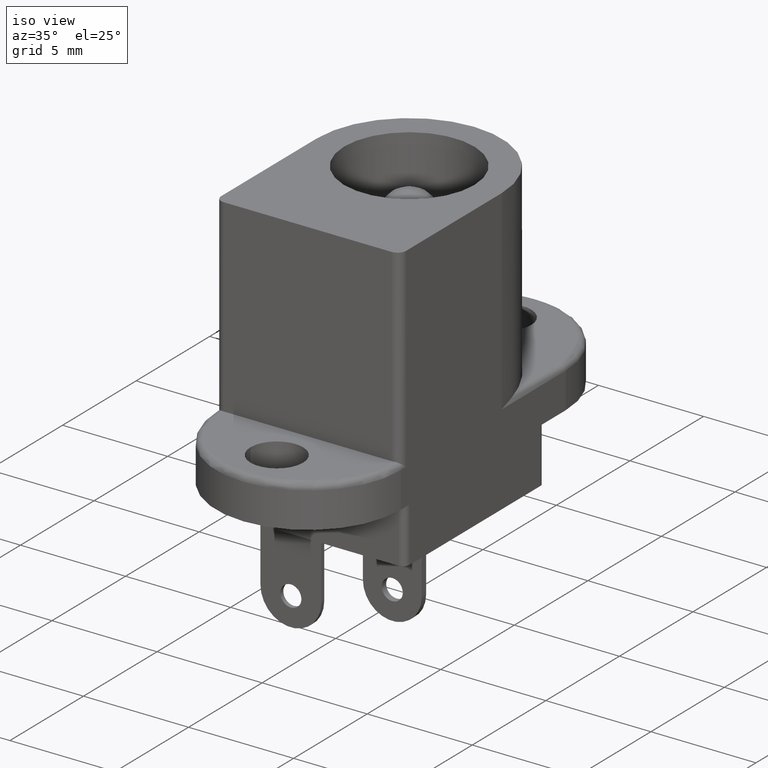
[diagram: clean part render]
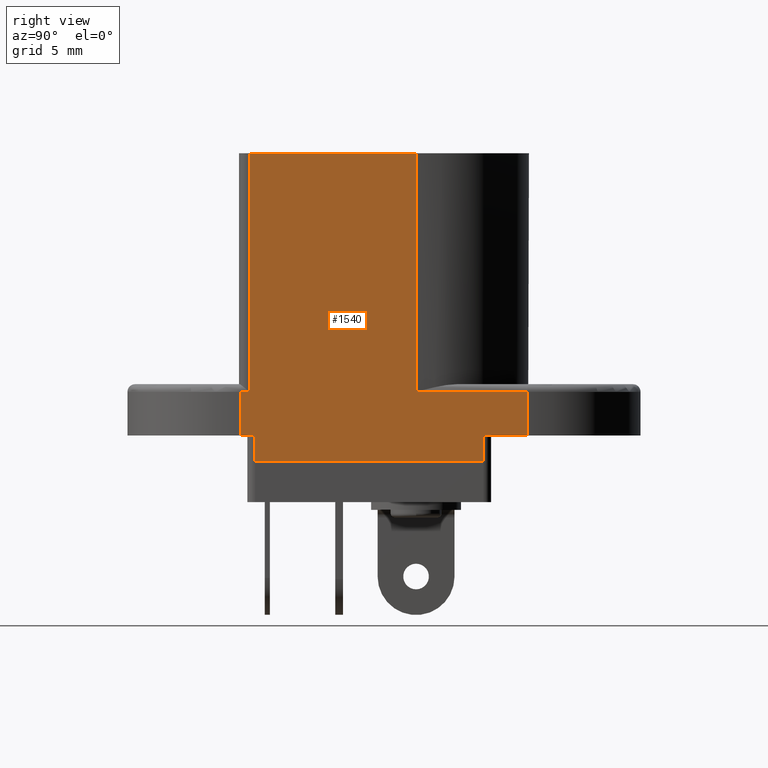
[diagram: tour spotlight — one face highlighted and labeled with its STEP entity id]
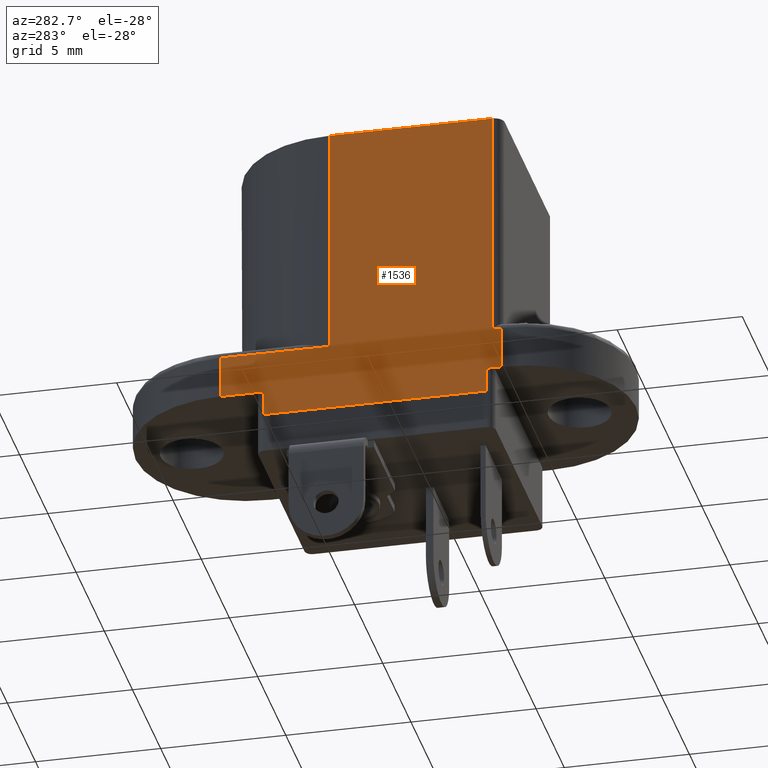
[diagram: tour spotlight — one face highlighted and labeled with its STEP entity id]
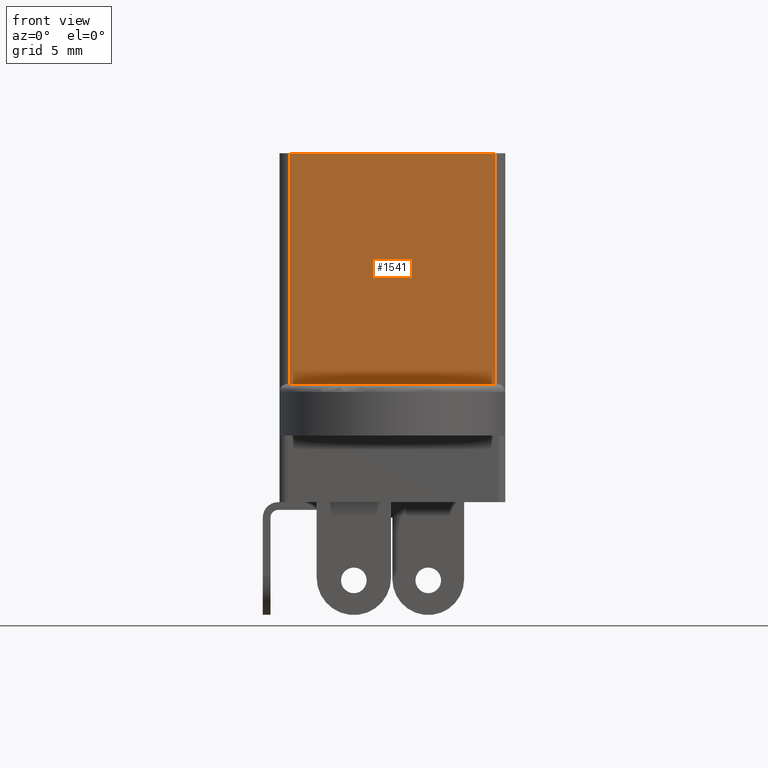
[diagram: tour spotlight — one face highlighted and labeled with its STEP entity id]
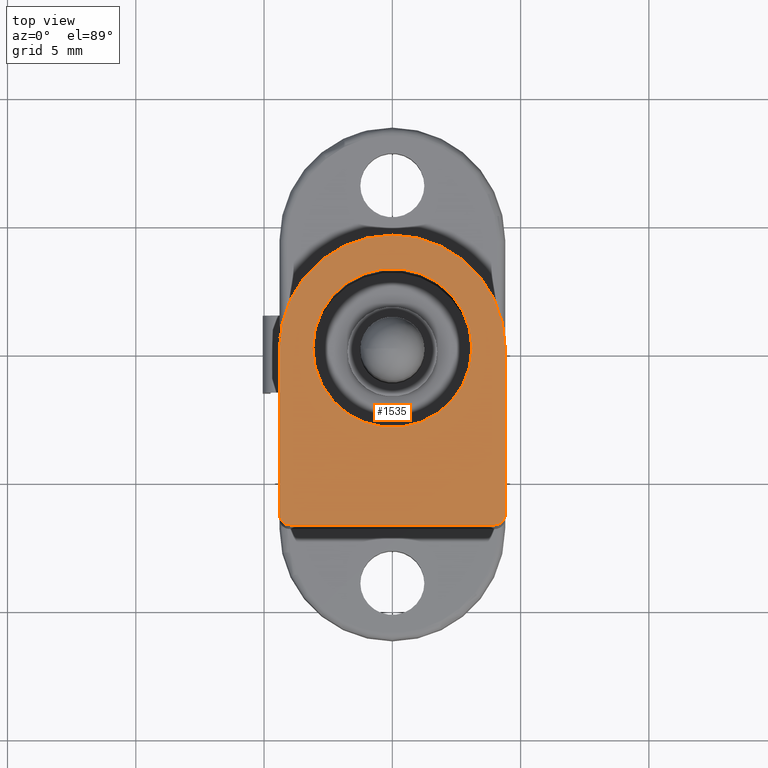
[diagram: tour spotlight — one face highlighted and labeled with its STEP entity id]
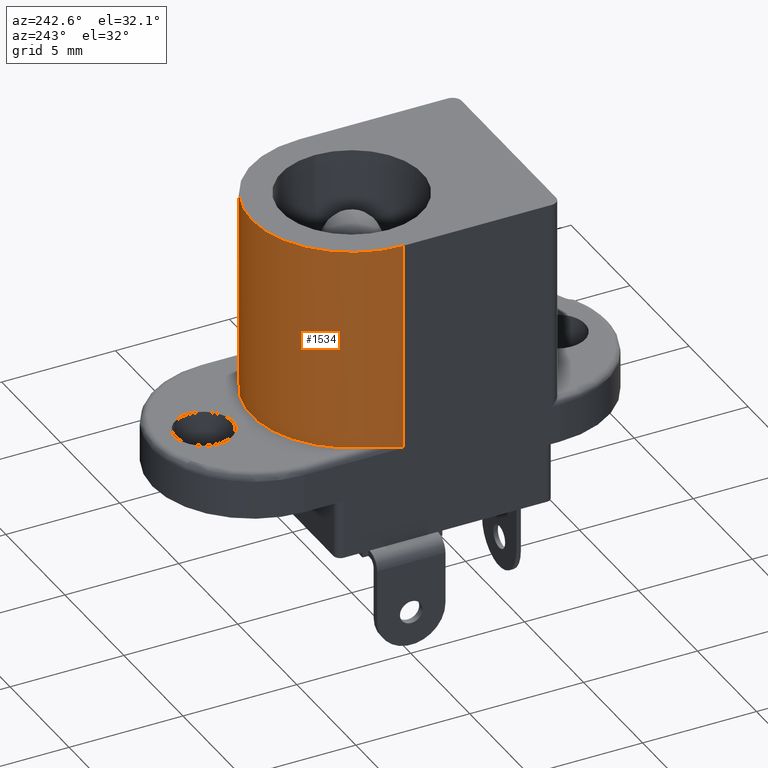
[diagram: tour spotlight — one face highlighted and labeled with its STEP entity id]
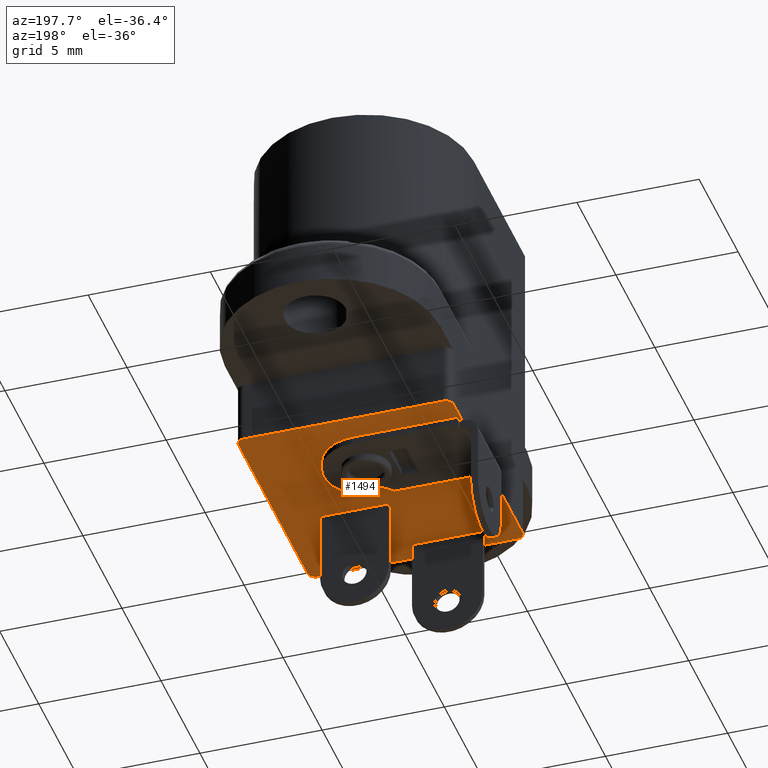
[diagram: tour spotlight — one face highlighted and labeled with its STEP entity id]
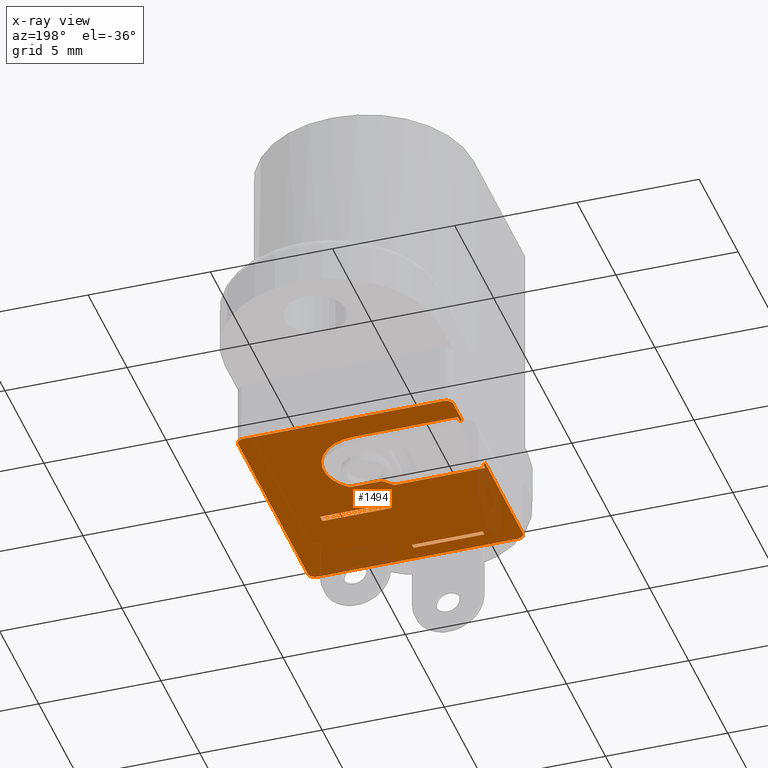
[diagram: x-ray of the same camera — body ghosted, this tour face saturated]
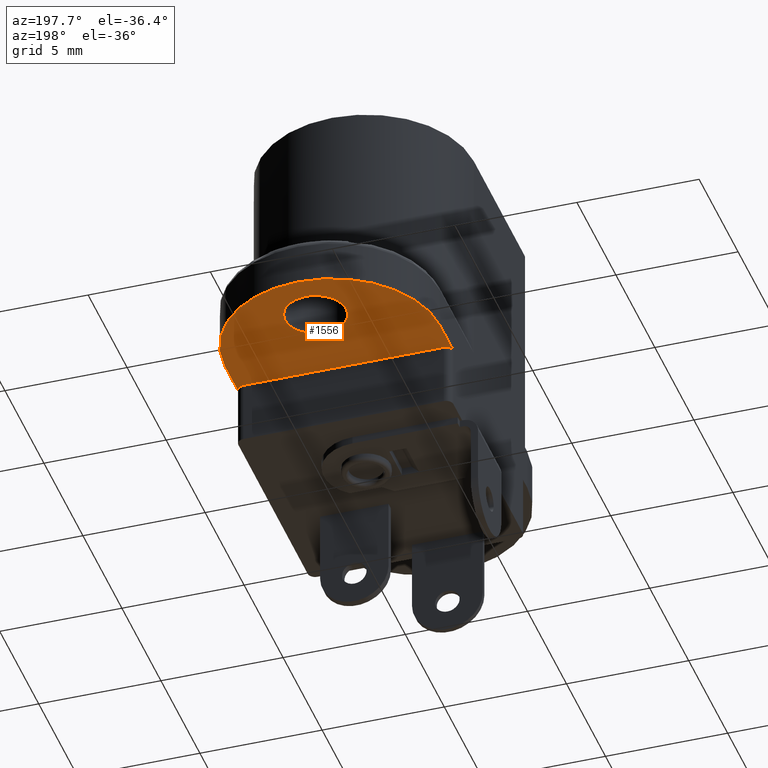
[diagram: tour spotlight — one face highlighted and labeled with its STEP entity id]
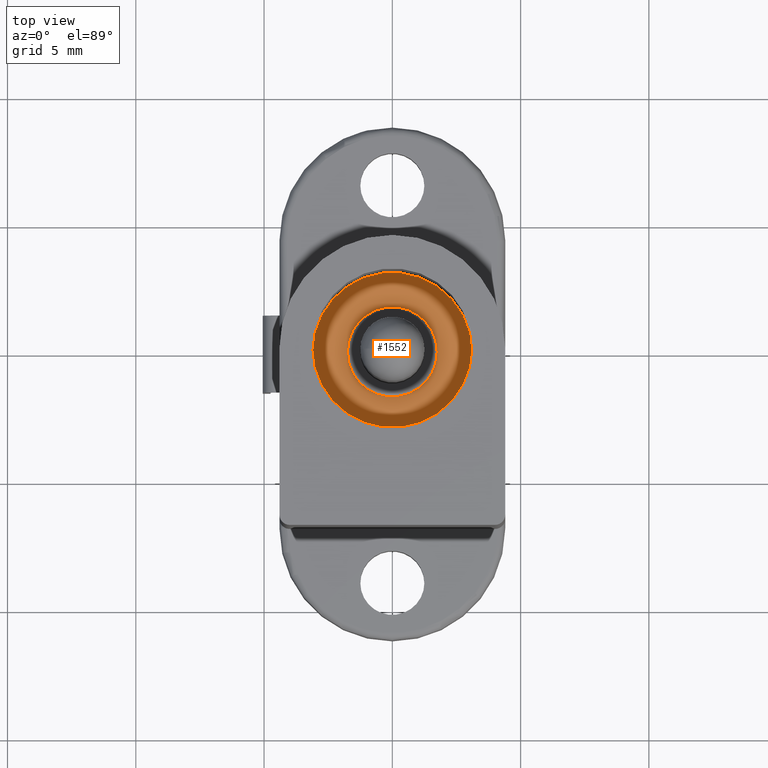
[diagram: tour spotlight — one face highlighted and labeled with its STEP entity id]
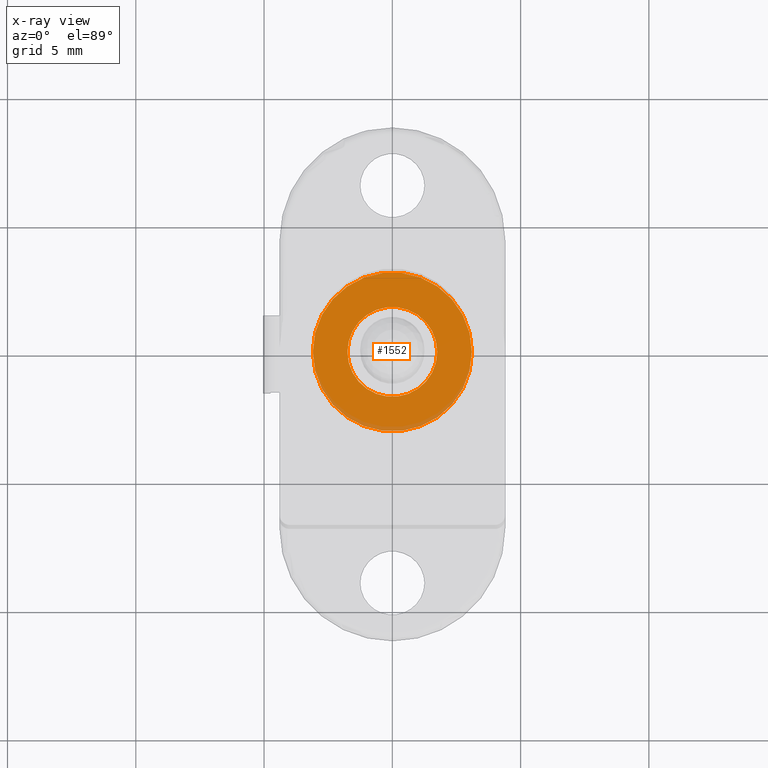
[diagram: x-ray of the same camera — body ghosted, this tour face saturated]
A machine part: a face-by-face anatomy tour. The part has 82 B-rep faces; the first image is the clean iso view, then the 8 largest visible faces are spotlighted one at a time (largest first), each with its STEP entity span.

Face 1 — right view, entity #1540. In plain terms, the highlighted planar face has unit normal (-1, 0, 0).
Definition (entity closure, byte-faithful):
#76=PLANE('',#1687);
#183=LINE('',#2455,#317);
#186=LINE('',#2480,#320);
#199=LINE('',#2698,#333);
#200=LINE('',#2702,#334);
#201=LINE('',#2704,#335);
#202=LINE('',#2706,#336);
#203=LINE('',#2708,#337);
#204=LINE('',#2710,#338);
#205=LINE('',#2712,#339);
#206=LINE('',#2714,#340);
#207=LINE('',#2715,#341);
#208=LINE('',#2716,#342);
#317=VECTOR('',#2024,1000.);
#320=VECTOR('',#2035,1000.);
#333=VECTOR('',#2060,1000.);
#334=VECTOR('',#2063,1000.);
#335=VECTOR('',#2064,1000.);
#336=VECTOR('',#2065,1000.);
#337=VECTOR('',#2066,1000.);
#338=VECTOR('',#2067,1000.);
#339=VECTOR('',#2068,1000.);
#340=VECTOR('',#2069,1000.);
#341=VECTOR('',#2070,1000.);
#342=VECTOR('',#2071,1000.);
#446=FACE_OUTER_BOUND('',#540,.T.);
#540=EDGE_LOOP('',(#1289,#1290,#1291,#1292,#1293,#1294,#1295,#1296,#1297,
#1298,#1299,#1300));
#730=VERTEX_POINT('',#2452);
#731=VERTEX_POINT('',#2454);
#737=VERTEX_POINT('',#2478);
#749=VERTEX_POINT('',#2696);
#750=VERTEX_POINT('',#2700);
#751=VERTEX_POINT('',#2701);
#752=VERTEX_POINT('',#2703);
#753=VERTEX_POINT('',#2705);
#754=VERTEX_POINT('',#2707);
#755=VERTEX_POINT('',#2709);
#756=VERTEX_POINT('',#2711);
#757=VERTEX_POINT('',#2713);
#915=EDGE_CURVE('',#730,#731,#183,.T.);
#923=EDGE_CURVE('',#737,#730,#186,.T.);
#939=EDGE_CURVE('',#731,#749,#199,.T.);
#940=EDGE_CURVE('',#750,#751,#200,.T.);
#941=EDGE_CURVE('',#752,#750,#201,.T.);
#942=EDGE_CURVE('',#752,#753,#202,.T.);
#943=EDGE_CURVE('',#754,#753,#203,.T.);
#944=EDGE_CURVE('',#755,#754,#204,.T.);
#945=EDGE_CURVE('',#756,#755,#205,.T.);
#946=EDGE_CURVE('',#756,#757,#206,.T.);
#947=EDGE_CURVE('',#749,#757,#207,.T.);
#948=EDGE_CURVE('',#751,#737,#208,.T.);
#1289=ORIENTED_EDGE('',*,*,#940,.F.);
#1290=ORIENTED_EDGE('',*,*,#941,.F.);
#1291=ORIENTED_EDGE('',*,*,#942,.T.);
#1292=ORIENTED_EDGE('',*,*,#943,.F.);
#1293=ORIENTED_EDGE('',*,*,#944,.F.);
#1294=ORIENTED_EDGE('',*,*,#945,.F.);
#1295=ORIENTED_EDGE('',*,*,#946,.T.);
#1296=ORIENTED_EDGE('',*,*,#947,.F.);
#1297=ORIENTED_EDGE('',*,*,#939,.F.);
#1298=ORIENTED_EDGE('',*,*,#915,.F.);
#1299=ORIENTED_EDGE('',*,*,#923,.F.);
#1300=ORIENTED_EDGE('',*,*,#948,.F.);
#1540=ADVANCED_FACE('',(#446),#76,.F.);
#1687=AXIS2_PLACEMENT_3D('',#2699,#2061,#2062);
#2024=DIRECTION('',(0.,0.,-1.));
#2035=DIRECTION('',(0.,1.,0.));
#2060=DIRECTION('',(0.,1.,0.));
#2061=DIRECTION('center_axis',(-1.,0.,0.));
#2062=DIRECTION('ref_axis',(0.,0.,1.));
#2063=DIRECTION('',(0.,1.,0.));
#2064=DIRECTION('',(0.,0.,1.));
#2065=DIRECTION('',(0.,1.,0.));
#2066=DIRECTION('',(0.,0.,1.));
#2067=DIRECTION('',(0.,-1.,0.));
#2068=DIRECTION('',(0.,0.,-1.));
#2069=DIRECTION('',(0.,1.,0.));
#2070=DIRECTION('',(0.,0.,-1.));
#2071=DIRECTION('',(0.,0.,1.));
#2452=CARTESIAN_POINT('',(4.4,2.69422295812418E-16,9.));
#2454=CARTESIAN_POINT('',(4.4,3.5155158240331E-16,-0.3));
#2455=CARTESIAN_POINT('',(4.4,5.38844591624835E-16,9.));
#2478=CARTESIAN_POINT('',(4.4,-6.5,9.));
#2480=CARTESIAN_POINT('',(4.4,-6.5,9.));
#2696=CARTESIAN_POINT('',(4.4,4.35,-0.3));
#2698=CARTESIAN_POINT('',(4.4,-6.85,-0.3));
#2699=CARTESIAN_POINT('Origin',(4.4,-6.5,9.));
#2700=CARTESIAN_POINT('',(4.4,-6.85,-0.3));
#2701=CARTESIAN_POINT('',(4.4,-6.5,-0.3));
#2702=CARTESIAN_POINT('',(4.4,-6.5,-0.3));
#2703=CARTESIAN_POINT('',(4.4,-6.85,-2.));
#2704=CARTESIAN_POINT('',(4.4,-6.85,-2.));
#2705=CARTESIAN_POINT('',(4.4,-6.275,-2.));
#2706=CARTESIAN_POINT('',(4.4,-6.85,-2.));
#2707=CARTESIAN_POINT('',(4.4,-6.275,-3.));
#2708=CARTESIAN_POINT('',(4.4,-6.275,9.));
#2709=CARTESIAN_POINT('',(4.4,2.625,-3.));
#2710=CARTESIAN_POINT('',(4.4,-6.5,-3.));
#2711=CARTESIAN_POINT('',(4.4,2.625,-2.));
#2712=CARTESIAN_POINT('',(4.4,2.625,9.));
#2713=CARTESIAN_POINT('',(4.4,4.35,-2.));
#2714=CARTESIAN_POINT('',(4.4,-6.85,-2.));
#2715=CARTESIAN_POINT('',(4.4,4.35,-2.));
#2716=CARTESIAN_POINT('',(4.4,-6.5,9.));

Face 2 — auxiliary view, entity #1536. In plain terms, the highlighted planar face has unit normal (1, 0, 0).
Definition (entity closure, byte-faithful):
#74=PLANE('',#1681);
#182=LINE('',#2451,#316);
#184=LINE('',#2473,#318);
#187=LINE('',#2484,#321);
#188=LINE('',#2485,#322);
#189=LINE('',#2487,#323);
#190=LINE('',#2489,#324);
#191=LINE('',#2491,#325);
#192=LINE('',#2493,#326);
#193=LINE('',#2495,#327);
#194=LINE('',#2497,#328);
#195=LINE('',#2499,#329);
#196=LINE('',#2500,#330);
#316=VECTOR('',#2021,1000.);
#318=VECTOR('',#2029,1000.);
#321=VECTOR('',#2038,1000.);
#322=VECTOR('',#2039,1000.);
#323=VECTOR('',#2040,1000.);
#324=VECTOR('',#2041,1000.);
#325=VECTOR('',#2042,1000.);
#326=VECTOR('',#2043,1000.);
#327=VECTOR('',#2044,1000.);
#328=VECTOR('',#2045,1000.);
#329=VECTOR('',#2046,1000.);
#330=VECTOR('',#2047,1000.);
#442=FACE_OUTER_BOUND('',#535,.T.);
#535=EDGE_LOOP('',(#1264,#1265,#1266,#1267,#1268,#1269,#1270,#1271,#1272,
#1273,#1274,#1275));
#728=VERTEX_POINT('',#2449);
#729=VERTEX_POINT('',#2450);
#734=VERTEX_POINT('',#2472);
#738=VERTEX_POINT('',#2482);
#739=VERTEX_POINT('',#2483);
#740=VERTEX_POINT('',#2486);
#741=VERTEX_POINT('',#2488);
#742=VERTEX_POINT('',#2490);
#743=VERTEX_POINT('',#2492);
#744=VERTEX_POINT('',#2494);
#745=VERTEX_POINT('',#2496);
#746=VERTEX_POINT('',#2498);
#913=EDGE_CURVE('',#728,#729,#182,.T.);
#919=EDGE_CURVE('',#729,#734,#184,.T.);
#924=EDGE_CURVE('',#738,#739,#187,.T.);
#925=EDGE_CURVE('',#734,#738,#188,.T.);
#926=EDGE_CURVE('',#740,#728,#189,.T.);
#927=EDGE_CURVE('',#741,#740,#190,.T.);
#928=EDGE_CURVE('',#741,#742,#191,.T.);
#929=EDGE_CURVE('',#743,#742,#192,.T.);
#930=EDGE_CURVE('',#744,#743,#193,.T.);
#931=EDGE_CURVE('',#745,#744,#194,.T.);
#932=EDGE_CURVE('',#745,#746,#195,.T.);
#933=EDGE_CURVE('',#739,#746,#196,.T.);
#1264=ORIENTED_EDGE('',*,*,#924,.F.);
#1265=ORIENTED_EDGE('',*,*,#925,.F.);
#1266=ORIENTED_EDGE('',*,*,#919,.F.);
#1267=ORIENTED_EDGE('',*,*,#913,.F.);
#1268=ORIENTED_EDGE('',*,*,#926,.F.);
#1269=ORIENTED_EDGE('',*,*,#927,.F.);
#1270=ORIENTED_EDGE('',*,*,#928,.T.);
#1271=ORIENTED_EDGE('',*,*,#929,.F.);
#1272=ORIENTED_EDGE('',*,*,#930,.F.);
#1273=ORIENTED_EDGE('',*,*,#931,.F.);
#1274=ORIENTED_EDGE('',*,*,#932,.T.);
#1275=ORIENTED_EDGE('',*,*,#933,.F.);
#1536=ADVANCED_FACE('',(#442),#74,.F.);
#1681=AXIS2_PLACEMENT_3D('',#2481,#2036,#2037);
#2021=DIRECTION('',(0.,0.,1.));
#2029=DIRECTION('',(0.,-1.,0.));
#2036=DIRECTION('center_axis',(1.,0.,0.));
#2037=DIRECTION('ref_axis',(0.,0.,-1.));
#2038=DIRECTION('',(0.,-1.,0.));
#2039=DIRECTION('',(0.,0.,-1.));
#2040=DIRECTION('',(0.,-1.,0.));
#2041=DIRECTION('',(0.,0.,1.));
#2042=DIRECTION('',(0.,-1.,0.));
#2043=DIRECTION('',(0.,0.,1.));
#2044=DIRECTION('',(0.,1.,0.));
#2045=DIRECTION('',(0.,0.,-1.));
#2046=DIRECTION('',(0.,-1.,0.));
#2047=DIRECTION('',(0.,0.,-1.));
#2449=CARTESIAN_POINT('',(-4.4,0.,-0.3));
#2450=CARTESIAN_POINT('',(-4.4,0.,9.));
#2451=CARTESIAN_POINT('',(-4.4,0.,9.));
#2472=CARTESIAN_POINT('',(-4.4,-6.5,9.));
#2473=CARTESIAN_POINT('',(-4.4,-6.5,9.));
#2481=CARTESIAN_POINT('Origin',(-4.4,0.,9.));
#2482=CARTESIAN_POINT('',(-4.4,-6.5,-0.3));
#2483=CARTESIAN_POINT('',(-4.4,-6.84999999999998,-0.3));
#2484=CARTESIAN_POINT('',(-4.4,0.,-0.3));
#2485=CARTESIAN_POINT('',(-4.4,-6.5,9.));
#2486=CARTESIAN_POINT('',(-4.4,4.35,-0.3));
#2487=CARTESIAN_POINT('',(-4.4,0.,-0.3));
#2488=CARTESIAN_POINT('',(-4.4,4.35,-2.));
#2489=CARTESIAN_POINT('',(-4.4,4.35,-2.));
#2490=CARTESIAN_POINT('',(-4.4,2.625,-2.));
#2491=CARTESIAN_POINT('',(-4.4,-6.85,-2.));
#2492=CARTESIAN_POINT('',(-4.4,2.625,-3.));
#2493=CARTESIAN_POINT('',(-4.4,2.625,9.));
#2494=CARTESIAN_POINT('',(-4.4,-6.275,-3.));
#2495=CARTESIAN_POINT('',(-4.4,0.,-3.));
#2496=CARTESIAN_POINT('',(-4.4,-6.275,-2.));
#2497=CARTESIAN_POINT('',(-4.4,-6.275,9.));
#2498=CARTESIAN_POINT('',(-4.4,-6.85,-2.));
#2499=CARTESIAN_POINT('',(-4.4,-6.85,-2.));
#2500=CARTESIAN_POINT('',(-4.4,-6.85,-2.));

Face 3 — front view, entity #1541. In plain terms, the highlighted planar face has unit normal (0, 1, 0).
Definition (entity closure, byte-faithful):
#77=PLANE('',#1688);
#185=LINE('',#2477,#319);
#209=LINE('',#2719,#343);
#210=LINE('',#2721,#344);
#211=LINE('',#2722,#345);
#319=VECTOR('',#2032,1000.);
#343=VECTOR('',#2074,1000.);
#344=VECTOR('',#2075,1000.);
#345=VECTOR('',#2076,1000.);
#447=FACE_OUTER_BOUND('',#541,.T.);
#541=EDGE_LOOP('',(#1301,#1302,#1303,#1304));
#735=VERTEX_POINT('',#2474);
#736=VERTEX_POINT('',#2476);
#758=VERTEX_POINT('',#2718);
#759=VERTEX_POINT('',#2720);
#921=EDGE_CURVE('',#735,#736,#185,.T.);
#949=EDGE_CURVE('',#736,#758,#209,.T.);
#950=EDGE_CURVE('',#759,#735,#210,.T.);
#951=EDGE_CURVE('',#758,#759,#211,.T.);
#1301=ORIENTED_EDGE('',*,*,#949,.F.);
#1302=ORIENTED_EDGE('',*,*,#921,.F.);
#1303=ORIENTED_EDGE('',*,*,#950,.F.);
#1304=ORIENTED_EDGE('',*,*,#951,.F.);
#1541=ADVANCED_FACE('',(#447),#77,.F.);
#1688=AXIS2_PLACEMENT_3D('',#2717,#2072,#2073);
#2032=DIRECTION('',(1.,0.,0.));
#2072=DIRECTION('center_axis',(0.,1.,0.));
#2073=DIRECTION('ref_axis',(0.,0.,1.));
#2074=DIRECTION('',(0.,0.,-1.));
#2075=DIRECTION('',(0.,0.,1.));
#2076=DIRECTION('',(-1.,0.,0.));
#2474=CARTESIAN_POINT('',(-4.,-6.9,9.));
#2476=CARTESIAN_POINT('',(4.,-6.9,9.));
#2477=CARTESIAN_POINT('',(-4.,-6.9,9.));
#2717=CARTESIAN_POINT('Origin',(-4.,-6.9,9.));
#2718=CARTESIAN_POINT('',(4.,-6.9,0.));
#2719=CARTESIAN_POINT('',(4.,-6.9,9.));
#2720=CARTESIAN_POINT('',(-4.,-6.9,0.));
#2721=CARTESIAN_POINT('',(-4.,-6.9,9.));
#2722=CARTESIAN_POINT('',(-4.,-6.9,0.));

Face 4 — top view, entity #1535. In plain terms, the highlighted planar face has unit normal (0, 0, 1).
Definition (entity closure, byte-faithful):
#34=FACE_BOUND('',#534,.T.);
#73=PLANE('',#1678);
#184=LINE('',#2473,#318);
#185=LINE('',#2477,#319);
#186=LINE('',#2480,#320);
#318=VECTOR('',#2029,1000.);
#319=VECTOR('',#2032,1000.);
#320=VECTOR('',#2035,1000.);
#441=FACE_OUTER_BOUND('',#533,.T.);
#533=EDGE_LOOP('',(#1257,#1258,#1259,#1260,#1261,#1262));
#534=EDGE_LOOP('',(#1263));
#601=CIRCLE('',#1660,3.1);
#612=CIRCLE('',#1676,4.4);
#614=CIRCLE('',#1679,0.400000000000001);
#615=CIRCLE('',#1680,0.400000000000001);
#717=VERTEX_POINT('',#2417);
#729=VERTEX_POINT('',#2450);
#730=VERTEX_POINT('',#2452);
#734=VERTEX_POINT('',#2472);
#735=VERTEX_POINT('',#2474);
#736=VERTEX_POINT('',#2476);
#737=VERTEX_POINT('',#2478);
#897=EDGE_CURVE('',#717,#717,#601,.T.);
#914=EDGE_CURVE('',#729,#730,#612,.T.);
#919=EDGE_CURVE('',#729,#734,#184,.T.);
#920=EDGE_CURVE('',#735,#734,#614,.T.);
#921=EDGE_CURVE('',#735,#736,#185,.T.);
#922=EDGE_CURVE('',#737,#736,#615,.T.);
#923=EDGE_CURVE('',#737,#730,#186,.T.);
#1257=ORIENTED_EDGE('',*,*,#914,.F.);
#1258=ORIENTED_EDGE('',*,*,#919,.T.);
#1259=ORIENTED_EDGE('',*,*,#920,.F.);
#1260=ORIENTED_EDGE('',*,*,#921,.T.);
#1261=ORIENTED_EDGE('',*,*,#922,.F.);
#1262=ORIENTED_EDGE('',*,*,#923,.T.);
#1263=ORIENTED_EDGE('',*,*,#897,.T.);
#1535=ADVANCED_FACE('',(#441,#34),#73,.T.);
#1660=AXIS2_PLACEMENT_3D('',#2418,#1984,#1985);
#1676=AXIS2_PLACEMENT_3D('',#2453,#2022,#2023);
#1678=AXIS2_PLACEMENT_3D('',#2471,#2027,#2028);
#1679=AXIS2_PLACEMENT_3D('',#2475,#2030,#2031);
#1680=AXIS2_PLACEMENT_3D('',#2479,#2033,#2034);
#1984=DIRECTION('center_axis',(0.,0.,-1.));
#1985=DIRECTION('ref_axis',(-1.,0.,0.));
#2022=DIRECTION('center_axis',(0.,0.,-1.));
#2023=DIRECTION('ref_axis',(-1.,0.,0.));
#2027=DIRECTION('center_axis',(0.,0.,1.));
#2028=DIRECTION('ref_axis',(1.,0.,0.));
#2029=DIRECTION('',(0.,-1.,0.));
#2030=DIRECTION('center_axis',(0.,0.,-1.));
#2031=DIRECTION('ref_axis',(-1.,0.,0.));
#2032=DIRECTION('',(1.,0.,0.));
#2033=DIRECTION('center_axis',(0.,0.,-1.));
#2034=DIRECTION('ref_axis',(-1.,0.,0.));
#2035=DIRECTION('',(0.,1.,0.));
#2417=CARTESIAN_POINT('',(3.1,-3.7964050773568E-16,9.));
#2418=CARTESIAN_POINT('Origin',(0.,0.,9.));
#2450=CARTESIAN_POINT('',(-4.4,0.,9.));
#2452=CARTESIAN_POINT('',(4.4,2.69422295812418E-16,9.));
#2453=CARTESIAN_POINT('Origin',(0.,0.,9.));
#2471=CARTESIAN_POINT('Origin',(-4.,-6.5,9.));
#2472=CARTESIAN_POINT('',(-4.4,-6.5,9.));
#2473=CARTESIAN_POINT('',(-4.4,-6.5,9.));
#2474=CARTESIAN_POINT('',(-4.,-6.9,9.));
#2475=CARTESIAN_POINT('Origin',(-4.,-6.5,9.));
#2476=CARTESIAN_POINT('',(4.,-6.9,9.));
#2477=CARTESIAN_POINT('',(-4.,-6.9,9.));
#2478=CARTESIAN_POINT('',(4.4,-6.5,9.));
#2479=CARTESIAN_POINT('Origin',(4.,-6.5,9.));
#2480=CARTESIAN_POINT('',(4.4,-6.5,9.));

Face 5 — auxiliary view, entity #1534. In plain terms, the highlighted cylindrical surface (partial cylindrical patch) has radius 4.4 mm, axis along (0, 0, -1).
Definition (entity closure, byte-faithful):
#14=B_SPLINE_CURVE_WITH_KNOTS('',3,(#2457,#2458,#2459,#2460,#2461,#2462),
 .UNSPECIFIED.,.F.,.F.,(4,2,4),(-0.469880780461402,-0.391027137457108,-0.312173494452814),
 .UNSPECIFIED.);
#15=B_SPLINE_CURVE_WITH_KNOTS('',3,(#2465,#2466,#2467,#2468,#2469,#2470),
 .UNSPECIFIED.,.F.,.F.,(4,2,4),(-0.157707286008589,-0.0788536430042943,
0.),.UNSPECIFIED.);
#182=LINE('',#2451,#316);
#183=LINE('',#2455,#317);
#316=VECTOR('',#2021,1000.);
#317=VECTOR('',#2024,1000.);
#374=CYLINDRICAL_SURFACE('',#1675,4.4);
#440=FACE_OUTER_BOUND('',#532,.T.);
#532=EDGE_LOOP('',(#1251,#1252,#1253,#1254,#1255,#1256));
#612=CIRCLE('',#1676,4.4);
#613=CIRCLE('',#1677,4.4);
#728=VERTEX_POINT('',#2449);
#729=VERTEX_POINT('',#2450);
#730=VERTEX_POINT('',#2452);
#731=VERTEX_POINT('',#2454);
#732=VERTEX_POINT('',#2456);
#733=VERTEX_POINT('',#2463);
#913=EDGE_CURVE('',#728,#729,#182,.T.);
#914=EDGE_CURVE('',#729,#730,#612,.T.);
#915=EDGE_CURVE('',#730,#731,#183,.T.);
#916=EDGE_CURVE('',#731,#732,#14,.T.);
#917=EDGE_CURVE('',#732,#733,#613,.T.);
#918=EDGE_CURVE('',#733,#728,#15,.T.);
#1251=ORIENTED_EDGE('',*,*,#913,.T.);
#1252=ORIENTED_EDGE('',*,*,#914,.T.);
#1253=ORIENTED_EDGE('',*,*,#915,.T.);
#1254=ORIENTED_EDGE('',*,*,#916,.T.);
#1255=ORIENTED_EDGE('',*,*,#917,.T.);
#1256=ORIENTED_EDGE('',*,*,#918,.T.);
#1534=ADVANCED_FACE('',(#440),#374,.T.);
#1675=AXIS2_PLACEMENT_3D('',#2448,#2019,#2020);
#1676=AXIS2_PLACEMENT_3D('',#2453,#2022,#2023);
#1677=AXIS2_PLACEMENT_3D('',#2464,#2025,#2026);
#2019=DIRECTION('center_axis',(0.,0.,-1.));
#2020=DIRECTION('ref_axis',(-1.,0.,0.));
#2021=DIRECTION('',(0.,0.,1.));
#2022=DIRECTION('center_axis',(0.,0.,-1.));
#2023=DIRECTION('ref_axis',(-1.,0.,0.));
#2024=DIRECTION('',(0.,0.,-1.));
#2025=DIRECTION('center_axis',(0.,0.,1.));
#2026=DIRECTION('ref_axis',(-1.,0.,0.));
#2448=CARTESIAN_POINT('Origin',(0.,0.,9.));
#2449=CARTESIAN_POINT('',(-4.4,0.,-0.3));
#2450=CARTESIAN_POINT('',(-4.4,0.,9.));
#2451=CARTESIAN_POINT('',(-4.4,0.,9.));
#2452=CARTESIAN_POINT('',(4.4,2.69422295812418E-16,9.));
#2453=CARTESIAN_POINT('Origin',(0.,0.,9.));
#2454=CARTESIAN_POINT('',(4.4,3.5155158240331E-16,-0.3));
#2455=CARTESIAN_POINT('',(4.4,5.38844591624835E-16,9.));
#2456=CARTESIAN_POINT('',(4.1,1.59687194226713,0.));
#2457=CARTESIAN_POINT('Ctrl Pts',(4.4,0.,-0.3));
#2458=CARTESIAN_POINT('Ctrl Pts',(4.4,0.254318478629868,-0.23359325306084));
#2459=CARTESIAN_POINT('Ctrl Pts',(4.37661136408707,0.53216436138855,-0.160339342295918));
#2460=CARTESIAN_POINT('Ctrl Pts',(4.27426287296736,1.08102345623248,-0.0437914552904731));
#2461=CARTESIAN_POINT('Ctrl Pts',(4.19539331065084,1.35194774808712,-1.76513083132968E-16));
#2462=CARTESIAN_POINT('Ctrl Pts',(4.1,1.59687194226713,7.70371977754894E-33));
#2463=CARTESIAN_POINT('',(-4.1,1.59687194226713,0.));
#2464=CARTESIAN_POINT('Origin',(0.,0.,0.));
#2465=CARTESIAN_POINT('Ctrl Pts',(-4.1,1.59687194226713,7.70371977754894E-33));
#2466=CARTESIAN_POINT('Ctrl Pts',(-4.19539331065084,1.35194774808712,-1.93328828835992E-16));
#2467=CARTESIAN_POINT('Ctrl Pts',(-4.27426287296736,1.08102345623248,-0.0437914552904731));
#2468=CARTESIAN_POINT('Ctrl Pts',(-4.37661136408707,0.53216436138855,-0.160339342295918));
#2469=CARTESIAN_POINT('Ctrl Pts',(-4.4,0.254318478629868,-0.23359325306084));
#2470=CARTESIAN_POINT('Ctrl Pts',(-4.4,0.,-0.3));

Face 6 — auxiliary view, entity #1494. An x-ray twin of the same camera follows (body ghosted, this face saturated) — the face is partly hidden behind the body. In plain terms, the highlighted planar face has unit normal (0, 0, -1).
Definition (entity closure, byte-faithful):
#24=FACE_BOUND('',#483,.T.);
#25=FACE_BOUND('',#484,.T.);
#46=PLANE('',#1611);
#98=LINE('',#2228,#232);
#101=LINE('',#2234,#235);
#103=LINE('',#2238,#237);
#106=LINE('',#2244,#240);
#109=LINE('',#2250,#243);
#111=LINE('',#2257,#245);
#112=LINE('',#2259,#246);
#113=LINE('',#2261,#247);
#114=LINE('',#2263,#248);
#115=LINE('',#2264,#249);
#116=LINE('',#2266,#250);
#117=LINE('',#2268,#251);
#118=LINE('',#2269,#252);
#119=LINE('',#2274,#253);
#120=LINE('',#2276,#254);
#121=LINE('',#2278,#255);
#122=LINE('',#2279,#256);
#123=LINE('',#2282,#257);
#124=LINE('',#2284,#258);
#125=LINE('',#2286,#259);
#126=LINE('',#2287,#260);
#232=VECTOR('',#1797,1000.);
#235=VECTOR('',#1802,1000.);
#237=VECTOR('',#1804,1000.);
#240=VECTOR('',#1809,1000.);
#243=VECTOR('',#1814,1000.);
#245=VECTOR('',#1824,1000.);
#246=VECTOR('',#1825,1000.);
#247=VECTOR('',#1826,1000.);
#248=VECTOR('',#1827,1000.);
#249=VECTOR('',#1828,1000.);
#250=VECTOR('',#1829,1000.);
#251=VECTOR('',#1830,1000.);
#252=VECTOR('',#1831,1000.);
#253=VECTOR('',#1836,1000.);
#254=VECTOR('',#1837,1000.);
#255=VECTOR('',#1838,1000.);
#256=VECTOR('',#1839,1000.);
#257=VECTOR('',#1840,1000.);
#258=VECTOR('',#1841,1000.);
#259=VECTOR('',#1842,1000.);
#260=VECTOR('',#1843,1000.);
#400=FACE_OUTER_BOUND('',#482,.T.);
#482=EDGE_LOOP('',(#1044,#1045,#1046,#1047,#1048,#1049,#1050,#1051,#1052,
#1053,#1054,#1055,#1056,#1057,#1058,#1059,#1060,#1061));
#483=EDGE_LOOP('',(#1062,#1063,#1064,#1065));
#484=EDGE_LOOP('',(#1066,#1067,#1068,#1069));
#574=CIRCLE('',#1586,1.75);
#587=CIRCLE('',#1610,0.3);
#588=CIRCLE('',#1612,0.299999999999999);
#589=CIRCLE('',#1613,0.3);
#590=CIRCLE('',#1614,0.3);
#641=VERTEX_POINT('',#2176);
#642=VERTEX_POINT('',#2178);
#659=VERTEX_POINT('',#2225);
#660=VERTEX_POINT('',#2227);
#661=VERTEX_POINT('',#2231);
#662=VERTEX_POINT('',#2233);
#663=VERTEX_POINT('',#2235);
#664=VERTEX_POINT('',#2237);
#665=VERTEX_POINT('',#2241);
#666=VERTEX_POINT('',#2243);
#667=VERTEX_POINT('',#2247);
#668=VERTEX_POINT('',#2249);
#669=VERTEX_POINT('',#2256);
#670=VERTEX_POINT('',#2258);
#671=VERTEX_POINT('',#2260);
#672=VERTEX_POINT('',#2262);
#673=VERTEX_POINT('',#2265);
#674=VERTEX_POINT('',#2267);
#675=VERTEX_POINT('',#2272);
#676=VERTEX_POINT('',#2273);
#677=VERTEX_POINT('',#2275);
#678=VERTEX_POINT('',#2277);
#679=VERTEX_POINT('',#2280);
#680=VERTEX_POINT('',#2281);
#681=VERTEX_POINT('',#2283);
#682=VERTEX_POINT('',#2285);
#780=EDGE_CURVE('',#642,#641,#574,.T.);
#804=EDGE_CURVE('',#660,#659,#98,.T.);
#807=EDGE_CURVE('',#662,#661,#101,.T.);
#809=EDGE_CURVE('',#664,#663,#103,.T.);
#812=EDGE_CURVE('',#666,#665,#106,.T.);
#815=EDGE_CURVE('',#668,#667,#109,.T.);
#817=EDGE_CURVE('',#668,#659,#587,.T.);
#818=EDGE_CURVE('',#665,#664,#588,.T.);
#819=EDGE_CURVE('',#663,#669,#111,.T.);
#820=EDGE_CURVE('',#669,#670,#112,.T.);
#821=EDGE_CURVE('',#670,#671,#113,.T.);
#822=EDGE_CURVE('',#671,#672,#114,.T.);
#823=EDGE_CURVE('',#672,#642,#115,.T.);
#824=EDGE_CURVE('',#641,#673,#116,.T.);
#825=EDGE_CURVE('',#673,#674,#117,.T.);
#826=EDGE_CURVE('',#674,#662,#118,.T.);
#827=EDGE_CURVE('',#661,#660,#589,.T.);
#828=EDGE_CURVE('',#667,#666,#590,.T.);
#829=EDGE_CURVE('',#675,#676,#119,.T.);
#830=EDGE_CURVE('',#676,#677,#120,.T.);
#831=EDGE_CURVE('',#677,#678,#121,.T.);
#832=EDGE_CURVE('',#678,#675,#122,.T.);
#833=EDGE_CURVE('',#679,#680,#123,.T.);
#834=EDGE_CURVE('',#680,#681,#124,.T.);
#835=EDGE_CURVE('',#681,#682,#125,.T.);
#836=EDGE_CURVE('',#682,#679,#126,.T.);
#1044=ORIENTED_EDGE('',*,*,#812,.T.);
#1045=ORIENTED_EDGE('',*,*,#818,.T.);
#1046=ORIENTED_EDGE('',*,*,#809,.T.);
#1047=ORIENTED_EDGE('',*,*,#819,.T.);
#1048=ORIENTED_EDGE('',*,*,#820,.T.);
#1049=ORIENTED_EDGE('',*,*,#821,.T.);
#1050=ORIENTED_EDGE('',*,*,#822,.T.);
#1051=ORIENTED_EDGE('',*,*,#823,.T.);
#1052=ORIENTED_EDGE('',*,*,#780,.T.);
#1053=ORIENTED_EDGE('',*,*,#824,.T.);
#1054=ORIENTED_EDGE('',*,*,#825,.T.);
#1055=ORIENTED_EDGE('',*,*,#826,.T.);
#1056=ORIENTED_EDGE('',*,*,#807,.T.);
#1057=ORIENTED_EDGE('',*,*,#827,.T.);
#1058=ORIENTED_EDGE('',*,*,#804,.T.);
#1059=ORIENTED_EDGE('',*,*,#817,.F.);
#1060=ORIENTED_EDGE('',*,*,#815,.T.);
#1061=ORIENTED_EDGE('',*,*,#828,.T.);
#1062=ORIENTED_EDGE('',*,*,#829,.T.);
#1063=ORIENTED_EDGE('',*,*,#830,.T.);
#1064=ORIENTED_EDGE('',*,*,#831,.T.);
#1065=ORIENTED_EDGE('',*,*,#832,.T.);
#1066=ORIENTED_EDGE('',*,*,#833,.T.);
#1067=ORIENTED_EDGE('',*,*,#834,.T.);
#1068=ORIENTED_EDGE('',*,*,#835,.T.);
#1069=ORIENTED_EDGE('',*,*,#836,.T.);
#1494=ADVANCED_FACE('',(#400,#24,#25),#46,.T.);
#1586=AXIS2_PLACEMENT_3D('',#2179,#1746,#1747);
#1610=AXIS2_PLACEMENT_3D('',#2253,#1818,#1819);
#1611=AXIS2_PLACEMENT_3D('',#2254,#1820,#1821);
#1612=AXIS2_PLACEMENT_3D('',#2255,#1822,#1823);
#1613=AXIS2_PLACEMENT_3D('',#2270,#1832,#1833);
#1614=AXIS2_PLACEMENT_3D('',#2271,#1834,#1835);
#1746=DIRECTION('center_axis',(0.,0.,1.));
#1747=DIRECTION('ref_axis',(1.,0.,0.));
#1797=DIRECTION('',(1.,5.28879108529514E-17,0.));
#1802=DIRECTION('',(0.,1.,0.));
#1804=DIRECTION('',(0.,1.,0.));
#1809=DIRECTION('',(-1.,0.,0.));
#1814=DIRECTION('',(-9.74563750548768E-17,-1.,0.));
#1818=DIRECTION('center_axis',(0.,0.,1.));
#1819=DIRECTION('ref_axis',(1.,0.,0.));
#1820=DIRECTION('center_axis',(0.,0.,-1.));
#1821=DIRECTION('ref_axis',(-1.,0.,0.));
#1822=DIRECTION('center_axis',(0.,0.,-1.));
#1823=DIRECTION('ref_axis',(1.,0.,0.));
#1824=DIRECTION('',(1.,0.,0.));
#1825=DIRECTION('',(0.,-1.,0.));
#1826=DIRECTION('',(1.,0.,0.));
#1827=DIRECTION('',(0.707106781186551,0.707106781186544,0.));
#1828=DIRECTION('',(1.,0.,0.));
#1829=DIRECTION('',(-1.,0.,0.));
#1830=DIRECTION('',(0.,-1.,0.));
#1831=DIRECTION('',(-1.,0.,0.));
#1832=DIRECTION('center_axis',(0.,0.,-1.));
#1833=DIRECTION('ref_axis',(1.,0.,0.));
#1834=DIRECTION('center_axis',(0.,0.,-1.));
#1835=DIRECTION('ref_axis',(1.,0.,0.));
#1836=DIRECTION('',(-1.,0.,0.));
#1837=DIRECTION('',(0.,-1.,0.));
#1838=DIRECTION('',(1.,0.,0.));
#1839=DIRECTION('',(1.35525271560687E-16,1.,0.));
#1840=DIRECTION('',(-1.,0.,0.));
#1841=DIRECTION('',(0.,-1.,0.));
#1842=DIRECTION('',(1.,0.,0.));
#1843=DIRECTION('',(0.,1.,0.));
#2176=CARTESIAN_POINT('',(1.40710731846706E-16,1.75,-4.6));
#2178=CARTESIAN_POINT('',(1.113552872566,-1.35,-4.6));
#2179=CARTESIAN_POINT('Origin',(0.,0.,-4.6));
#2225=CARTESIAN_POINT('',(4.1,2.925,-4.6));
#2227=CARTESIAN_POINT('',(-4.1,2.925,-4.6));
#2228=CARTESIAN_POINT('',(-4.1,2.925,-4.6));
#2231=CARTESIAN_POINT('',(-4.4,2.625,-4.6));
#2233=CARTESIAN_POINT('',(-4.4,1.5,-4.6));
#2234=CARTESIAN_POINT('',(-4.4,-6.275,-4.6));
#2235=CARTESIAN_POINT('',(-4.4,-1.5,-4.6));
#2237=CARTESIAN_POINT('',(-4.4,-6.275,-4.6));
#2238=CARTESIAN_POINT('',(-4.4,-6.275,-4.6));
#2241=CARTESIAN_POINT('',(-4.1,-6.575,-4.6));
#2243=CARTESIAN_POINT('',(4.1,-6.575,-4.6));
#2244=CARTESIAN_POINT('',(4.1,-6.575,-4.6));
#2247=CARTESIAN_POINT('',(4.4,-6.275,-4.6));
#2249=CARTESIAN_POINT('',(4.4,2.625,-4.6));
#2250=CARTESIAN_POINT('',(4.4,2.625,-4.6));
#2253=CARTESIAN_POINT('Origin',(4.1,2.625,-4.6));
#2254=CARTESIAN_POINT('Origin',(4.1,2.625,-4.6));
#2255=CARTESIAN_POINT('Origin',(-4.1,-6.275,-4.6));
#2256=CARTESIAN_POINT('',(-4.3,-1.5,-4.6));
#2257=CARTESIAN_POINT('',(-4.75,-1.5,-4.6));
#2258=CARTESIAN_POINT('',(-4.3,-1.75,-4.6));
#2259=CARTESIAN_POINT('',(-4.3,2.625,-4.6));
#2260=CARTESIAN_POINT('',(-0.600000000000004,-1.75,-4.6));
#2261=CARTESIAN_POINT('',(4.1,-1.75,-4.6));
#2262=CARTESIAN_POINT('',(-0.200000000000001,-1.35,-4.6));
#2263=CARTESIAN_POINT('',(-0.600000000000005,-1.75,-4.6));
#2264=CARTESIAN_POINT('',(4.1,-1.35,-4.6));
#2265=CARTESIAN_POINT('',(-4.3,1.75,-4.6));
#2266=CARTESIAN_POINT('',(4.1,1.75,-4.6));
#2267=CARTESIAN_POINT('',(-4.3,1.5,-4.6));
#2268=CARTESIAN_POINT('',(-4.3,2.625,-4.6));
#2269=CARTESIAN_POINT('',(-4.75,1.5,-4.6));
#2270=CARTESIAN_POINT('Origin',(-4.1,2.625,-4.6));
#2271=CARTESIAN_POINT('Origin',(4.1,-6.275,-4.6));
#2272=CARTESIAN_POINT('',(-0.049999999999999,-5.7,-4.6));
#2273=CARTESIAN_POINT('',(-2.95,-5.7,-4.6));
#2274=CARTESIAN_POINT('',(4.1,-5.7,-4.6));
#2275=CARTESIAN_POINT('',(-2.95,-5.9,-4.6));
#2276=CARTESIAN_POINT('',(-2.95,-5.7,-4.6));
#2277=CARTESIAN_POINT('',(-0.0499999999999991,-5.9,-4.6));
#2278=CARTESIAN_POINT('',(4.1,-5.9,-4.6));
#2279=CARTESIAN_POINT('',(-0.0499999999999992,-5.7,-4.6));
#2280=CARTESIAN_POINT('',(2.8,-2.85,-4.6));
#2281=CARTESIAN_POINT('',(-1.59016318631207E-15,-2.85,-4.6));
#2282=CARTESIAN_POINT('',(4.1,-2.85,-4.6));
#2283=CARTESIAN_POINT('',(-1.44560289664734E-15,-3.15,-4.6));
#2284=CARTESIAN_POINT('',(-1.30104260698261E-15,-2.85,-4.6));
#2285=CARTESIAN_POINT('',(2.8,-3.15,-4.6));
#2286=CARTESIAN_POINT('',(4.1,-3.15,-4.6));
#2287=CARTESIAN_POINT('',(2.8,-2.85,-4.6));

Face 7 — auxiliary view, entity #1556. In plain terms, the highlighted planar face has unit normal (0, 0, 1).
Definition (entity closure, byte-faithful):
#38=FACE_BOUND('',#559,.T.);
#83=PLANE('',#1716);
#191=LINE('',#2491,#325);
#206=LINE('',#2714,#340);
#218=LINE('',#2986,#352);
#325=VECTOR('',#2042,1000.);
#340=VECTOR('',#2069,1000.);
#352=VECTOR('',#2135,1000.);
#462=FACE_OUTER_BOUND('',#558,.T.);
#558=EDGE_LOOP('',(#1366,#1367,#1368,#1369,#1370,#1371));
#559=EDGE_LOOP('',(#1372));
#603=CIRCLE('',#1663,1.25);
#621=CIRCLE('',#1695,0.3);
#630=CIRCLE('',#1711,0.3);
#631=CIRCLE('',#1717,4.4);
#719=VERTEX_POINT('',#2423);
#741=VERTEX_POINT('',#2488);
#742=VERTEX_POINT('',#2490);
#756=VERTEX_POINT('',#2711);
#757=VERTEX_POINT('',#2713);
#763=VERTEX_POINT('',#2748);
#771=VERTEX_POINT('',#2793);
#900=EDGE_CURVE('',#719,#719,#603,.T.);
#928=EDGE_CURVE('',#741,#742,#191,.T.);
#946=EDGE_CURVE('',#756,#757,#206,.T.);
#957=EDGE_CURVE('',#742,#763,#621,.T.);
#974=EDGE_CURVE('',#771,#756,#630,.T.);
#976=EDGE_CURVE('',#771,#763,#218,.T.);
#978=EDGE_CURVE('',#757,#741,#631,.T.);
#1366=ORIENTED_EDGE('',*,*,#976,.T.);
#1367=ORIENTED_EDGE('',*,*,#957,.F.);
#1368=ORIENTED_EDGE('',*,*,#928,.F.);
#1369=ORIENTED_EDGE('',*,*,#978,.F.);
#1370=ORIENTED_EDGE('',*,*,#946,.F.);
#1371=ORIENTED_EDGE('',*,*,#974,.F.);
#1372=ORIENTED_EDGE('',*,*,#900,.T.);
#1556=ADVANCED_FACE('',(#462,#38),#83,.F.);
#1663=AXIS2_PLACEMENT_3D('',#2424,#1991,#1992);
#1695=AXIS2_PLACEMENT_3D('',#2749,#2089,#2090);
#1711=AXIS2_PLACEMENT_3D('',#2795,#2127,#2128);
#1716=AXIS2_PLACEMENT_3D('',#2989,#2139,#2140);
#1717=AXIS2_PLACEMENT_3D('',#2990,#2141,#2142);
#1991=DIRECTION('center_axis',(0.,0.,1.));
#1992=DIRECTION('ref_axis',(1.,0.,0.));
#2042=DIRECTION('',(0.,-1.,0.));
#2069=DIRECTION('',(0.,1.,0.));
#2089=DIRECTION('center_axis',(0.,0.,-1.));
#2090=DIRECTION('ref_axis',(1.,0.,0.));
#2127=DIRECTION('center_axis',(0.,0.,-1.));
#2128=DIRECTION('ref_axis',(1.,-4.33680868994202E-15,0.));
#2135=DIRECTION('',(-1.,0.,0.));
#2139=DIRECTION('center_axis',(0.,0.,1.));
#2140=DIRECTION('ref_axis',(1.,0.,0.));
#2141=DIRECTION('center_axis',(0.,0.,1.));
#2142=DIRECTION('ref_axis',(1.,0.,0.));
#2423=CARTESIAN_POINT('',(-1.25,6.5,-2.));
#2424=CARTESIAN_POINT('Origin',(0.,6.5,-2.));
#2488=CARTESIAN_POINT('',(-4.4,4.35,-2.));
#2490=CARTESIAN_POINT('',(-4.4,2.625,-2.));
#2491=CARTESIAN_POINT('',(-4.4,-6.85,-2.));
#2711=CARTESIAN_POINT('',(4.4,2.625,-2.));
#2713=CARTESIAN_POINT('',(4.4,4.35,-2.));
#2714=CARTESIAN_POINT('',(4.4,-6.85,-2.));
#2748=CARTESIAN_POINT('',(-4.1,2.925,-2.));
#2749=CARTESIAN_POINT('Origin',(-4.1,2.625,-2.));
#2793=CARTESIAN_POINT('',(4.1,2.925,-2.));
#2795=CARTESIAN_POINT('Origin',(4.1,2.625,-2.));
#2986=CARTESIAN_POINT('',(4.1,2.925,-2.));
#2989=CARTESIAN_POINT('Origin',(8.38883057415937E-16,-6.85,-2.));
#2990=CARTESIAN_POINT('Origin',(-1.37267856483481E-17,4.35,-2.));

Face 8 — top view, entity #1552. An x-ray twin of the same camera follows (body ghosted, this face saturated) — the face is partly hidden behind the body. In plain terms, the highlighted planar face has unit normal (0, 0, 1).
Definition (entity closure, byte-faithful):
#36=FACE_BOUND('',#553,.T.);
#79=PLANE('',#1712);
#458=FACE_OUTER_BOUND('',#552,.T.);
#552=EDGE_LOOP('',(#1351));
#553=EDGE_LOOP('',(#1352));
#602=CIRCLE('',#1661,3.1);
#605=CIRCLE('',#1666,1.75);
#718=VERTEX_POINT('',#2419);
#721=VERTEX_POINT('',#2429);
#899=EDGE_CURVE('',#718,#718,#602,.T.);
#903=EDGE_CURVE('',#721,#721,#605,.T.);
#1351=ORIENTED_EDGE('',*,*,#899,.T.);
#1352=ORIENTED_EDGE('',*,*,#903,.T.);
#1552=ADVANCED_FACE('',(#458,#36),#79,.T.);
#1661=AXIS2_PLACEMENT_3D('',#2421,#1987,#1988);
#1666=AXIS2_PLACEMENT_3D('',#2430,#1998,#1999);
#1712=AXIS2_PLACEMENT_3D('',#2796,#2129,#2130);
#1987=DIRECTION('center_axis',(0.,0.,1.));
#1988=DIRECTION('ref_axis',(-1.,0.,0.));
#1998=DIRECTION('center_axis',(0.,0.,-1.));
#1999=DIRECTION('ref_axis',(-1.,0.,0.));
#2129=DIRECTION('center_axis',(0.,0.,1.));
#2130=DIRECTION('ref_axis',(1.,0.,0.));
#2419=CARTESIAN_POINT('',(3.1,-3.7964050773568E-16,1.11022302462516E-15));
#2421=CARTESIAN_POINT('Origin',(0.,0.,0.));
#2429=CARTESIAN_POINT('',(1.75,-2.14313189850787E-16,0.));
#2430=CARTESIAN_POINT('Origin',(0.,0.,0.));
#2796=CARTESIAN_POINT('Origin',(8.38883057415937E-16,-6.85,0.));